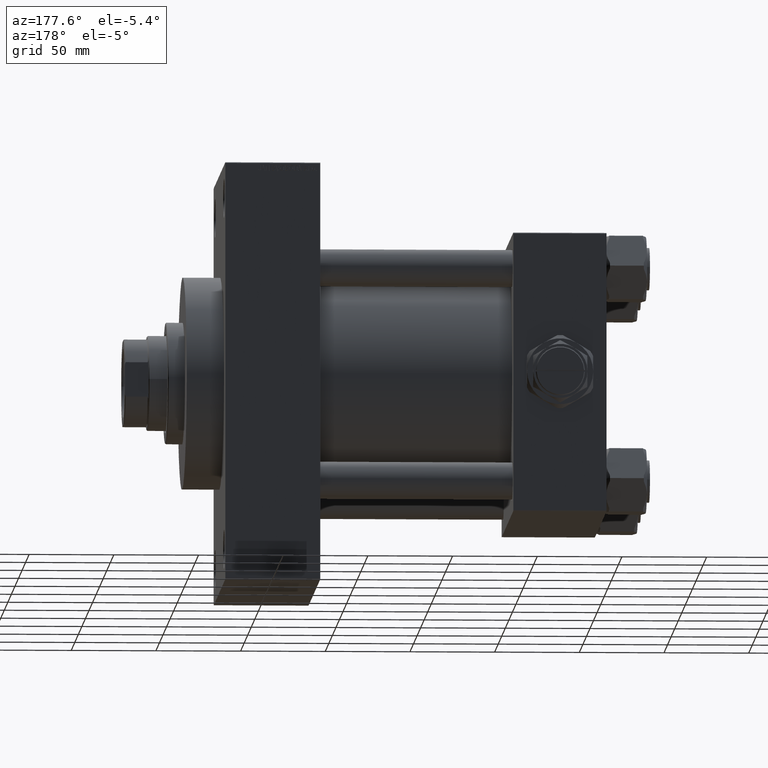
[diagram: clean part render]
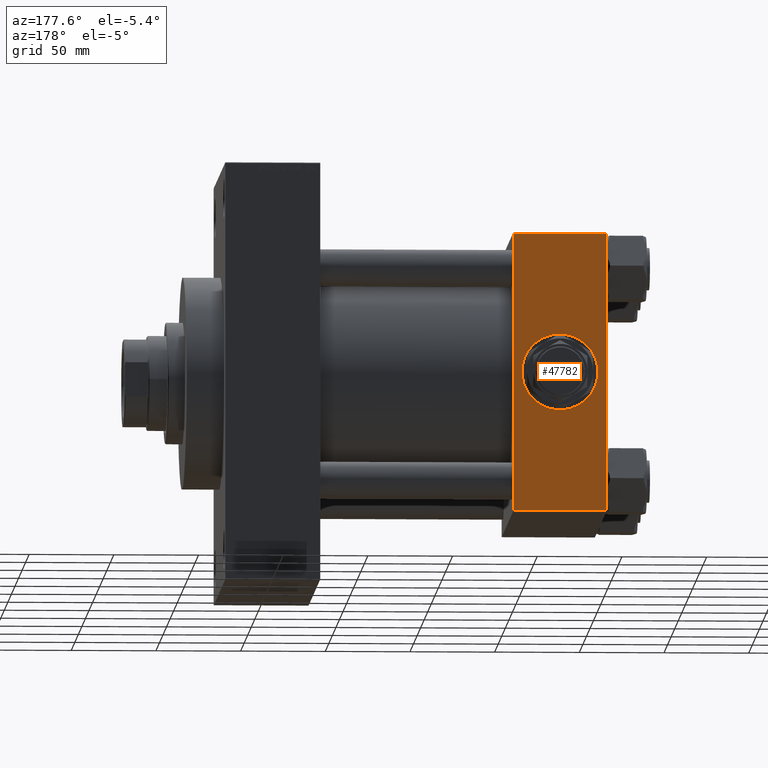
[diagram: same view with one face highlighted and labeled with its STEP entity id]
A machine part, auxiliary view. The second image highlights one B-rep face of the part: STEP entity #47782.
In plain terms, the highlighted planar face has unit normal (0, 1, 0).
Its self-contained STEP definition (entity closure, byte-faithful):
#210 = VERTEX_POINT ( 'NONE', #17242 ) ;
#1593 = EDGE_LOOP ( 'NONE', ( #18787, #38821, #12748, #16002 ) ) ;
#2997 = EDGE_CURVE ( 'NONE', #44845, #210, #31458, .T. ) ;
#3753 = VECTOR ( 'NONE', #12423, 1000.000000000000000 ) ;
#5087 = VECTOR ( 'NONE', #31215, 1000.000000000000000 ) ;
#7050 = CARTESIAN_POINT ( 'NONE',  ( 55.00000000000000000, 82.50000000000002842, -82.00000000000000000 ) ) ;
#8467 = ORIENTED_EDGE ( 'NONE', *, *, #34481, .F. ) ;
#10026 = VERTEX_POINT ( 'NONE', #41428 ) ;
#10309 = DIRECTION ( 'NONE',  ( -1.000000000000000000, 0.000000000000000000, 0.000000000000000000 ) ) ;
#10974 = CIRCLE ( 'NONE', #13375, 22.50000000000000711 ) ;
#12070 = AXIS2_PLACEMENT_3D ( 'NONE', #31978, #46739, #27220 ) ;
#12423 = DIRECTION ( 'NONE',  ( 0.000000000000000000, 0.000000000000000000, -1.000000000000000000 ) ) ;
#12748 = ORIENTED_EDGE ( 'NONE', *, *, #2997, .F. ) ;
#13375 = AXIS2_PLACEMENT_3D ( 'NONE', #28549, #35565, #25032 ) ;
#16002 = ORIENTED_EDGE ( 'NONE', *, *, #20530, .T. ) ;
#16152 = CARTESIAN_POINT ( 'NONE',  ( 0.000000000000000000, 82.50000000000002842, 82.00000000000005684 ) ) ;
#16985 = DIRECTION ( 'NONE',  ( 0.000000000000000000, 0.000000000000000000, 1.000000000000000000 ) ) ;
#17242 = CARTESIAN_POINT ( 'NONE',  ( 0.000000000000000000, 82.50000000000002842, -82.00000000000000000 ) ) ;
#17342 = AXIS2_PLACEMENT_3D ( 'NONE', #43746, #21960, #16985 ) ;
#18414 = CARTESIAN_POINT ( 'NONE',  ( 55.00000000000000000, 82.50000000000002842, 82.00000000000005684 ) ) ;
#18787 = ORIENTED_EDGE ( 'NONE', *, *, #34706, .T. ) ;
#20530 = EDGE_CURVE ( 'NONE', #44845, #34962, #41337, .T. ) ;
#20546 = ORIENTED_EDGE ( 'NONE', *, *, #33694, .F. ) ;
#21960 = DIRECTION ( 'NONE',  ( 0.000000000000000000, 1.000000000000000000, 0.000000000000000000 ) ) ;
#21985 = VERTEX_POINT ( 'NONE', #37631 ) ;
#22813 = EDGE_LOOP ( 'NONE', ( #20546, #8467 ) ) ;
#23046 = DIRECTION ( 'NONE',  ( 1.000000000000000000, 0.000000000000000000, 0.000000000000000000 ) ) ;
#25032 = DIRECTION ( 'NONE',  ( 0.000000000000000000, 0.000000000000000000, 1.000000000000000000 ) ) ;
#26752 = CARTESIAN_POINT ( 'NONE',  ( 55.00000000000000000, 82.50000000000002842, 82.50000000000002842 ) ) ;
#27220 = DIRECTION ( 'NONE',  ( 0.000000000000000000, -0.000000000000000000, 1.000000000000000000 ) ) ;
#27730 = CIRCLE ( 'NONE', #17342, 22.50000000000000711 ) ;
#28549 = CARTESIAN_POINT ( 'NONE',  ( 27.50000000000000000, 82.50000000000002842, 0.000000000000000000 ) ) ;
#31215 = DIRECTION ( 'NONE',  ( 0.000000000000000000, 0.000000000000000000, -1.000000000000000000 ) ) ;
#31458 = LINE ( 'NONE', #39221, #5087 ) ;
#31470 = FACE_BOUND ( 'NONE', #22813, .T. ) ;
#31978 = CARTESIAN_POINT ( 'NONE',  ( 55.00000000000000000, 82.50000000000002842, 82.50000000000002842 ) ) ;
#33694 = EDGE_CURVE ( 'NONE', #21985, #10026, #27730, .T. ) ;
#34481 = EDGE_CURVE ( 'NONE', #10026, #21985, #10974, .T. ) ;
#34706 = EDGE_CURVE ( 'NONE', #34962, #37612, #45791, .T. ) ;
#34962 = VERTEX_POINT ( 'NONE', #18414 ) ;
#34986 = PLANE ( 'NONE',  #12070 ) ;
#35557 = CARTESIAN_POINT ( 'NONE',  ( 55.00000000000000000, 82.50000000000002842, -82.00000000000000000 ) ) ;
#35565 = DIRECTION ( 'NONE',  ( 0.000000000000000000, 1.000000000000000000, 0.000000000000000000 ) ) ;
#37302 = EDGE_CURVE ( 'NONE', #37612, #210, #41354, .T. ) ;
#37612 = VERTEX_POINT ( 'NONE', #35557 ) ;
#37631 = CARTESIAN_POINT ( 'NONE',  ( 27.50000000000000000, 82.50000000000002842, 22.50000000000000711 ) ) ;
#38488 = FACE_OUTER_BOUND ( 'NONE', #1593, .T. ) ;
#38821 = ORIENTED_EDGE ( 'NONE', *, *, #37302, .T. ) ;
#39027 = VECTOR ( 'NONE', #10309, 1000.000000000000000 ) ;
#39221 = CARTESIAN_POINT ( 'NONE',  ( 0.000000000000000000, 82.50000000000002842, 82.50000000000002842 ) ) ;
#41337 = LINE ( 'NONE', #48861, #47169 ) ;
#41354 = LINE ( 'NONE', #7050, #39027 ) ;
#41428 = CARTESIAN_POINT ( 'NONE',  ( 27.50000000000000355, 82.50000000000002842, -22.50000000000000711 ) ) ;
#43746 = CARTESIAN_POINT ( 'NONE',  ( 27.50000000000000000, 82.50000000000002842, 0.000000000000000000 ) ) ;
#44845 = VERTEX_POINT ( 'NONE', #16152 ) ;
#45791 = LINE ( 'NONE', #26752, #3753 ) ;
#46739 = DIRECTION ( 'NONE',  ( -0.000000000000000000, 1.000000000000000000, 0.000000000000000000 ) ) ;
#47169 = VECTOR ( 'NONE', #23046, 1000.000000000000000 ) ;
#47782 = ADVANCED_FACE ( 'NONE', ( #31470, #38488 ), #34986, .T. ) ;
#48861 = CARTESIAN_POINT ( 'NONE',  ( 55.00000000000000000, 82.50000000000002842, 82.00000000000005684 ) ) ;